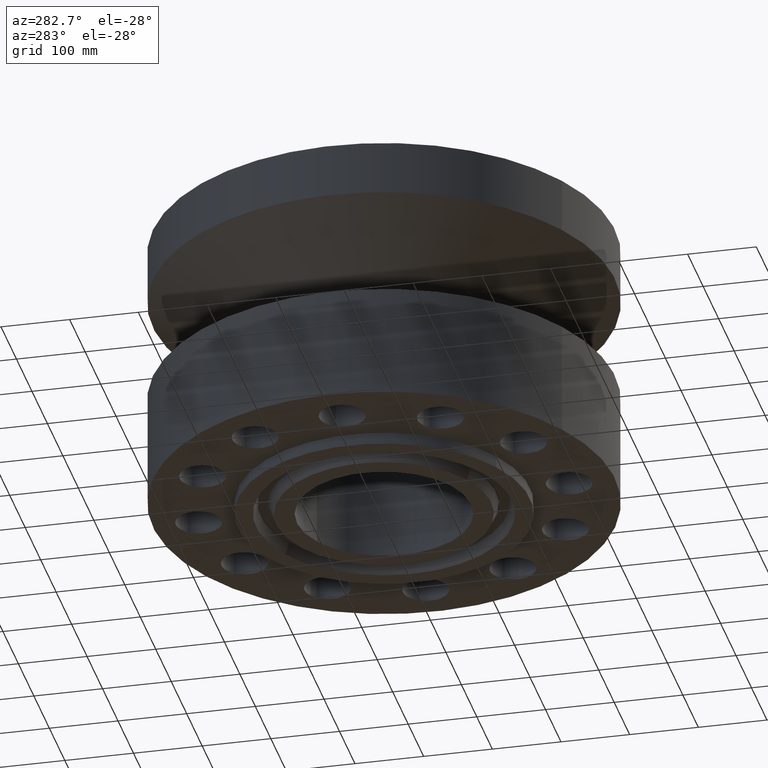
[diagram: clean part render]
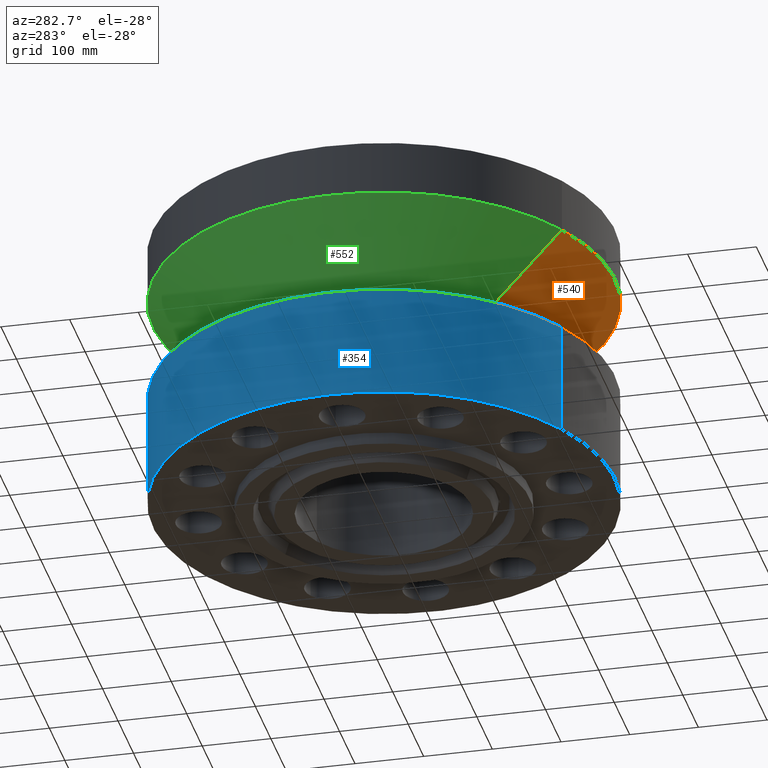
[diagram: same view with three faces highlighted in distinct colors, each labeled with its STEP entity id]
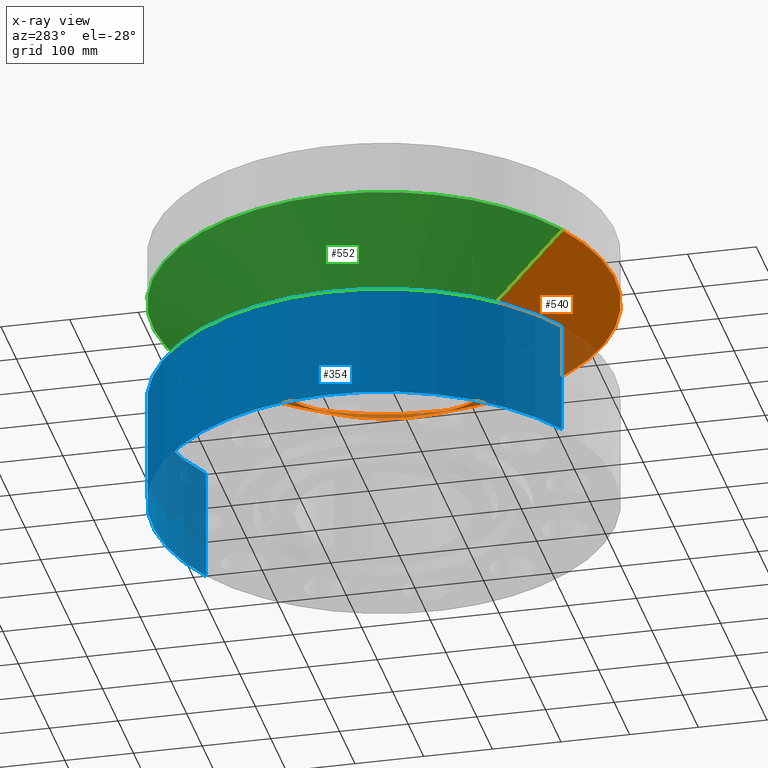
[diagram: x-ray of the same camera — body ghosted, the three highlighted faces saturated]
A machine part, auxiliary view with three faces highlighted in distinct colors.
The next image is the same camera in x-ray (body ghosted, the three faces saturated) — at least one of them is partly hidden behind the body in this view.
Their STEP definitions:

[orange] entity #540 — the highlighted conical surface has half-angle 60 deg.
#481=AXIS2_PLACEMENT_3D('Circle Axis2P3D',#479,#480,$) ;
#513=AXIS2_PLACEMENT_3D('Cone Axis2P3D',#510,#511,#512) ;
#524=AXIS2_PLACEMENT_3D('Circle Axis2P3D',#522,#523,$) ;
#476=CARTESIAN_POINT('Vertex',(3.53576334722,6.47217139397,9.25000000004)) ;
#479=CARTESIAN_POINT('Axis2P3D Location',(0.,0.,9.25000000004)) ;
#483=CARTESIAN_POINT('Vertex',(-3.53576334722,-6.47217139397,9.25000000004)) ;
#510=CARTESIAN_POINT('Axis2P3D Location',(0.,0.,9.25000000004)) ;
#515=CARTESIAN_POINT('Line Origine',(4.94407586688,9.05007016953,10.9459664158)) ;
#519=CARTESIAN_POINT('Vertex',(6.35238838653,11.6279689451,12.6419328315)) ;
#522=CARTESIAN_POINT('Axis2P3D Location',(0.,0.,12.6419328315)) ;
#526=CARTESIAN_POINT('Vertex',(-6.35238838653,-11.6279689451,12.6419328315)) ;
#529=CARTESIAN_POINT('Line Origine',(-4.94407586688,-9.05007016953,10.9459664158)) ;
#480=DIRECTION('Axis2P3D Direction',(0.,0.,-0.0393700787402)) ;
#511=DIRECTION('Axis2P3D Direction',(-0.,-0.,0.0393700787402)) ;
#512=DIRECTION('Axis2P3D XDirection',(0.0188750212049,0.0345504945626,0.)) ;
#516=DIRECTION('Vector Direction',(0.0163462478604,0.0299216060045,0.0196850393701)) ;
#523=DIRECTION('Axis2P3D Direction',(-0.,0.,0.0393700787402)) ;
#530=DIRECTION('Vector Direction',(-0.0163462478604,-0.0299216060045,0.0196850393701)) ;
#517=VECTOR('Line Direction',#516,0.0393700787402) ;
#531=VECTOR('Line Direction',#530,0.0393700787402) ;
#535=ORIENTED_EDGE('',*,*,#485,.F.) ;
#536=ORIENTED_EDGE('',*,*,#521,.T.) ;
#537=ORIENTED_EDGE('',*,*,#528,.T.) ;
#538=ORIENTED_EDGE('',*,*,#533,.F.) ;
#540=ADVANCED_FACE('PartBody',(#539),#514,.T.) ;
#482=CIRCLE('generated circle',#481,7.37500000003) ;
#525=CIRCLE('generated circle',#524,13.2500000001) ;
#514=CONICAL_SURFACE('Cone',#513,7.37500000003,1.0471975512) ;
#485=EDGE_CURVE('',#477,#484,#482,.T.) ;
#521=EDGE_CURVE('',#477,#520,#518,.T.) ;
#528=EDGE_CURVE('',#520,#527,#525,.F.) ;
#533=EDGE_CURVE('',#484,#527,#532,.T.) ;
#534=EDGE_LOOP('',(#535,#536,#537,#538)) ;
#539=FACE_OUTER_BOUND('',#534,.T.) ;
#518=LINE('Line',#515,#517) ;
#532=LINE('Line',#529,#531) ;
#477=VERTEX_POINT('',#476) ;
#484=VERTEX_POINT('',#483) ;
#520=VERTEX_POINT('',#519) ;
#527=VERTEX_POINT('',#526) ;

[blue] entity #354 — the highlighted cylindrical surface (partial cylindrical patch) has radius 336.55 mm, axis along (0, 0, -1).
#82=AXIS2_PLACEMENT_3D('Circle Axis2P3D',#80,#81,$) ;
#327=AXIS2_PLACEMENT_3D('Cylinder Axis2P3D',#324,#325,#326) ;
#338=AXIS2_PLACEMENT_3D('Circle Axis2P3D',#336,#337,$) ;
#80=CARTESIAN_POINT('Axis2P3D Location',(0.,0.,0.)) ;
#84=CARTESIAN_POINT('Vertex',(-6.35238838653,-11.6279689451,1.1189649382E-015)) ;
#86=CARTESIAN_POINT('Vertex',(6.35238838653,11.6279689451,1.1189649382E-015)) ;
#324=CARTESIAN_POINT('Axis2P3D Location',(0.,0.,7.53100000003)) ;
#329=CARTESIAN_POINT('Line Origine',(-6.35238838653,-11.6279689451,14.1959664158)) ;
#333=CARTESIAN_POINT('Vertex',(-6.35238838653,-11.6279689451,6.50000000003)) ;
#336=CARTESIAN_POINT('Axis2P3D Location',(0.,0.,6.50000000003)) ;
#340=CARTESIAN_POINT('Vertex',(6.35238838653,11.6279689451,6.50000000003)) ;
#343=CARTESIAN_POINT('Line Origine',(6.35238838653,11.6279689451,14.1959664158)) ;
#81=DIRECTION('Axis2P3D Direction',(0.,0.,-0.0393700787402)) ;
#325=DIRECTION('Axis2P3D Direction',(0.,0.,-0.0393700787402)) ;
#326=DIRECTION('Axis2P3D XDirection',(-0.0188750212049,-0.0345504945626,0.)) ;
#330=DIRECTION('Vector Direction',(0.,0.,-0.0393700787402)) ;
#337=DIRECTION('Axis2P3D Direction',(0.,0.,-0.0393700787402)) ;
#344=DIRECTION('Vector Direction',(0.,0.,-0.0393700787402)) ;
#331=VECTOR('Line Direction',#330,0.0393700787402) ;
#345=VECTOR('Line Direction',#344,0.0393700787402) ;
#349=ORIENTED_EDGE('',*,*,#88,.F.) ;
#350=ORIENTED_EDGE('',*,*,#335,.T.) ;
#351=ORIENTED_EDGE('',*,*,#342,.T.) ;
#352=ORIENTED_EDGE('',*,*,#347,.F.) ;
#354=ADVANCED_FACE('PartBody',(#353),#328,.T.) ;
#83=CIRCLE('generated circle',#82,13.2500000001) ;
#339=CIRCLE('generated circle',#338,13.2500000001) ;
#328=CYLINDRICAL_SURFACE('generated cylinder',#327,13.2500000001) ;
#88=EDGE_CURVE('',#85,#87,#83,.T.) ;
#335=EDGE_CURVE('',#85,#334,#332,.F.) ;
#342=EDGE_CURVE('',#334,#341,#339,.T.) ;
#347=EDGE_CURVE('',#87,#341,#346,.F.) ;
#348=EDGE_LOOP('',(#349,#350,#351,#352)) ;
#353=FACE_OUTER_BOUND('',#348,.T.) ;
#332=LINE('Line',#329,#331) ;
#346=LINE('Line',#343,#345) ;
#85=VERTEX_POINT('',#84) ;
#87=VERTEX_POINT('',#86) ;
#334=VERTEX_POINT('',#333) ;
#341=VERTEX_POINT('',#340) ;

[green] entity #552 — the highlighted conical surface has half-angle 60 deg.
#500=AXIS2_PLACEMENT_3D('Circle Axis2P3D',#498,#499,$) ;
#513=AXIS2_PLACEMENT_3D('Cone Axis2P3D',#510,#511,#512) ;
#543=AXIS2_PLACEMENT_3D('Circle Axis2P3D',#541,#542,$) ;
#476=CARTESIAN_POINT('Vertex',(3.53576334722,6.47217139397,9.25000000004)) ;
#483=CARTESIAN_POINT('Vertex',(-3.53576334722,-6.47217139397,9.25000000004)) ;
#498=CARTESIAN_POINT('Axis2P3D Location',(0.,0.,9.25000000004)) ;
#510=CARTESIAN_POINT('Axis2P3D Location',(0.,0.,9.25000000004)) ;
#515=CARTESIAN_POINT('Line Origine',(4.94407586688,9.05007016953,10.9459664158)) ;
#519=CARTESIAN_POINT('Vertex',(6.35238838653,11.6279689451,12.6419328315)) ;
#526=CARTESIAN_POINT('Vertex',(-6.35238838653,-11.6279689451,12.6419328315)) ;
#529=CARTESIAN_POINT('Line Origine',(-4.94407586688,-9.05007016953,10.9459664158)) ;
#541=CARTESIAN_POINT('Axis2P3D Location',(0.,0.,12.6419328315)) ;
#499=DIRECTION('Axis2P3D Direction',(0.,0.,-0.0393700787402)) ;
#511=DIRECTION('Axis2P3D Direction',(-0.,-0.,0.0393700787402)) ;
#512=DIRECTION('Axis2P3D XDirection',(0.0188750212049,0.0345504945626,0.)) ;
#516=DIRECTION('Vector Direction',(0.0163462478604,0.0299216060045,0.0196850393701)) ;
#530=DIRECTION('Vector Direction',(-0.0163462478604,-0.0299216060045,0.0196850393701)) ;
#542=DIRECTION('Axis2P3D Direction',(-0.,0.,0.0393700787402)) ;
#517=VECTOR('Line Direction',#516,0.0393700787402) ;
#531=VECTOR('Line Direction',#530,0.0393700787402) ;
#547=ORIENTED_EDGE('',*,*,#502,.F.) ;
#548=ORIENTED_EDGE('',*,*,#533,.T.) ;
#549=ORIENTED_EDGE('',*,*,#545,.T.) ;
#550=ORIENTED_EDGE('',*,*,#521,.F.) ;
#552=ADVANCED_FACE('PartBody',(#551),#514,.T.) ;
#501=CIRCLE('generated circle',#500,7.37500000003) ;
#544=CIRCLE('generated circle',#543,13.2500000001) ;
#514=CONICAL_SURFACE('Cone',#513,7.37500000003,1.0471975512) ;
#502=EDGE_CURVE('',#484,#477,#501,.T.) ;
#521=EDGE_CURVE('',#477,#520,#518,.T.) ;
#533=EDGE_CURVE('',#484,#527,#532,.T.) ;
#545=EDGE_CURVE('',#527,#520,#544,.F.) ;
#546=EDGE_LOOP('',(#547,#548,#549,#550)) ;
#551=FACE_OUTER_BOUND('',#546,.T.) ;
#518=LINE('Line',#515,#517) ;
#532=LINE('Line',#529,#531) ;
#477=VERTEX_POINT('',#476) ;
#484=VERTEX_POINT('',#483) ;
#520=VERTEX_POINT('',#519) ;
#527=VERTEX_POINT('',#526) ;